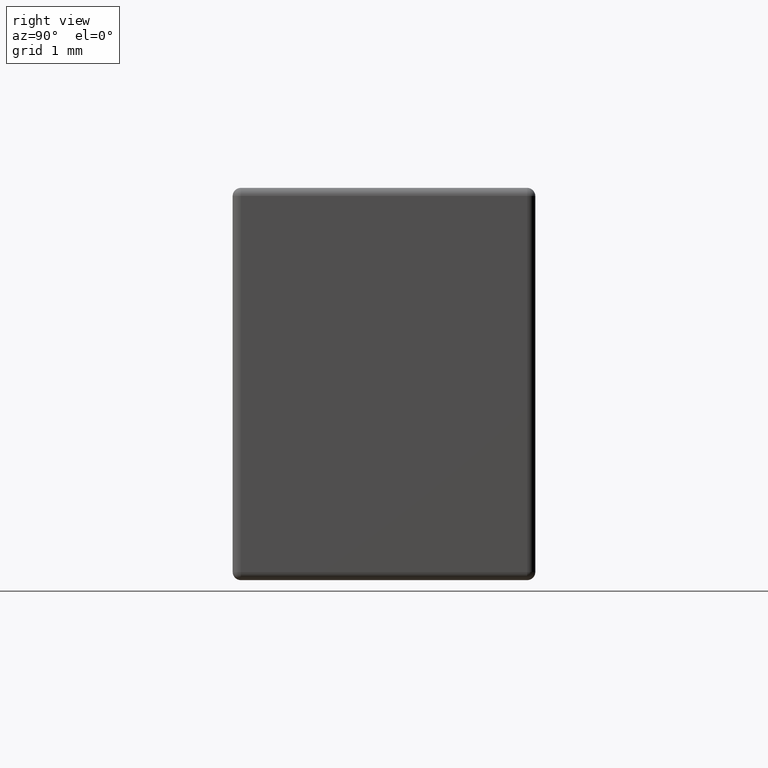
[diagram: clean part render]
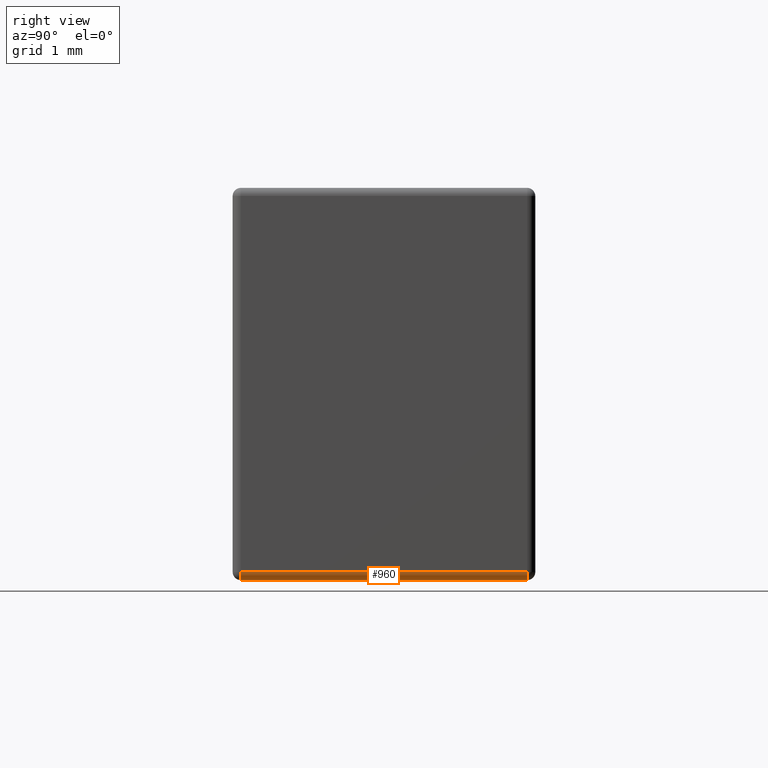
[diagram: same view with one face highlighted and labeled with its STEP entity id]
A machine part, right view. The second image highlights one B-rep face of the part: STEP entity #960.
In plain terms, the highlighted cylindrical surface (edge-blend (fillet) strip) has radius 0.0728 mm, axis along (0, 1, -0).
Its self-contained STEP definition (entity closure, byte-faithful):
#32 = CYLINDRICAL_SURFACE ( 'NONE', #2193, 0.07280000000000003135 ) ;
#44 = ORIENTED_EDGE ( 'NONE', *, *, #3769, .T. ) ;
#163 = DIRECTION ( 'NONE',  ( -0.000000000000000000, -1.000000000000000000, 0.000000000000000000 ) ) ;
#248 = LINE ( 'NONE', #2061, #1503 ) ;
#306 = CARTESIAN_POINT ( 'NONE',  ( 4.727199999999999847, 0.000000000000000000, -3.427200000000000024 ) ) ;
#558 = VERTEX_POINT ( 'NONE', #2295 ) ;
#725 = DIRECTION ( 'NONE',  ( 0.000000000000000000, -1.000000000000000000, -0.000000000000000000 ) ) ;
#779 = EDGE_CURVE ( 'NONE', #2009, #1563, #3334, .T. ) ;
#833 = AXIS2_PLACEMENT_3D ( 'NONE', #1860, #4639, #2572 ) ;
#960 = ADVANCED_FACE ( 'NONE', ( #3609 ), #32, .T. ) ;
#1175 = CARTESIAN_POINT ( 'NONE',  ( 4.727199999999999847, 0.000000000000000000, -3.500000000000000000 ) ) ;
#1183 = EDGE_CURVE ( 'NONE', #1469, #558, #248, .T. ) ;
#1469 = VERTEX_POINT ( 'NONE', #2346 ) ;
#1503 = VECTOR ( 'NONE', #2833, 1000.000000000000000 ) ;
#1563 = VERTEX_POINT ( 'NONE', #3487 ) ;
#1838 = CIRCLE ( 'NONE', #2753, 0.07280000000000003135 ) ;
#1856 = DIRECTION ( 'NONE',  ( 0.000000000000000000, 0.000000000000000000, 1.000000000000000000 ) ) ;
#1860 = CARTESIAN_POINT ( 'NONE',  ( 4.727199999999999847, 0.07280000000000000360, -3.427200000000000024 ) ) ;
#1965 = ORIENTED_EDGE ( 'NONE', *, *, #3466, .F. ) ;
#2009 = VERTEX_POINT ( 'NONE', #3498 ) ;
#2061 = CARTESIAN_POINT ( 'NONE',  ( 4.799999999999999822, 0.000000000000000000, -3.427200000000000024 ) ) ;
#2150 = DIRECTION ( 'NONE',  ( 0.000000000000000000, 0.000000000000000000, 1.000000000000000000 ) ) ;
#2193 = AXIS2_PLACEMENT_3D ( 'NONE', #306, #2546, #2150 ) ;
#2295 = CARTESIAN_POINT ( 'NONE',  ( 4.799999999999999822, 2.627200000000000202, -3.427200000000000024 ) ) ;
#2346 = CARTESIAN_POINT ( 'NONE',  ( 4.799999999999999822, 0.07280000000000000360, -3.427200000000000024 ) ) ;
#2546 = DIRECTION ( 'NONE',  ( 0.000000000000000000, 1.000000000000000000, -0.000000000000000000 ) ) ;
#2572 = DIRECTION ( 'NONE',  ( 0.000000000000000000, 0.000000000000000000, -1.000000000000000000 ) ) ;
#2595 = CARTESIAN_POINT ( 'NONE',  ( 4.727199999999999847, 2.627200000000000202, -3.427200000000000024 ) ) ;
#2676 = ORIENTED_EDGE ( 'NONE', *, *, #1183, .F. ) ;
#2753 = AXIS2_PLACEMENT_3D ( 'NONE', #2595, #725, #1856 ) ;
#2833 = DIRECTION ( 'NONE',  ( 0.000000000000000000, 1.000000000000000000, -0.000000000000000000 ) ) ;
#3334 = LINE ( 'NONE', #1175, #4648 ) ;
#3466 = EDGE_CURVE ( 'NONE', #1563, #1469, #3914, .T. ) ;
#3487 = CARTESIAN_POINT ( 'NONE',  ( 4.727199999999999847, 0.07280000000000000360, -3.500000000000000000 ) ) ;
#3498 = CARTESIAN_POINT ( 'NONE',  ( 4.727199999999999847, 2.627200000000000202, -3.500000000000000000 ) ) ;
#3609 = FACE_OUTER_BOUND ( 'NONE', #4392, .T. ) ;
#3769 = EDGE_CURVE ( 'NONE', #2009, #558, #1838, .T. ) ;
#3914 = CIRCLE ( 'NONE', #833, 0.07280000000000003135 ) ;
#4188 = ORIENTED_EDGE ( 'NONE', *, *, #779, .F. ) ;
#4392 = EDGE_LOOP ( 'NONE', ( #44, #2676, #1965, #4188 ) ) ;
#4639 = DIRECTION ( 'NONE',  ( 0.000000000000000000, -1.000000000000000000, 0.000000000000000000 ) ) ;
#4648 = VECTOR ( 'NONE', #163, 1000.000000000000000 ) ;